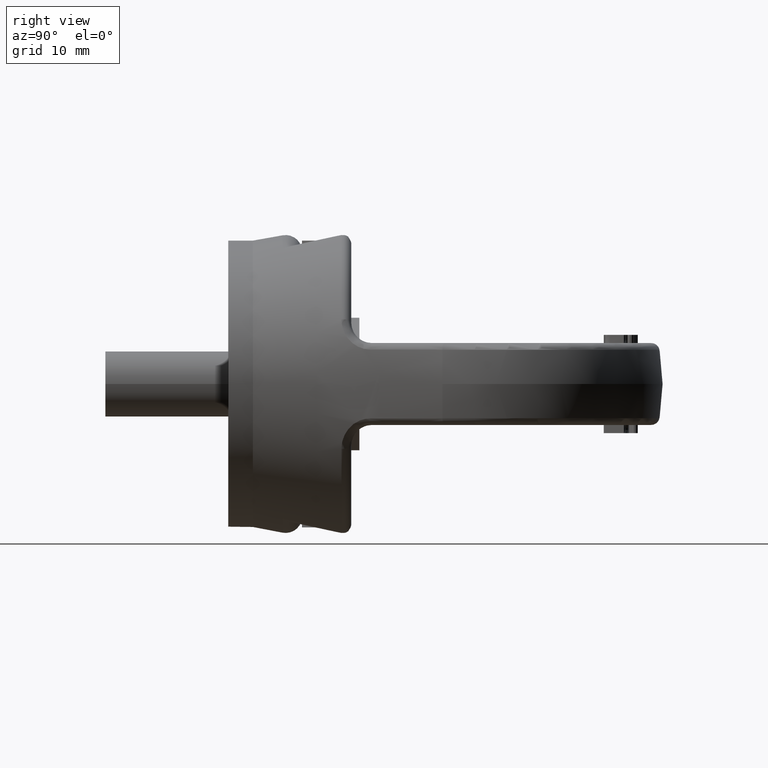
[diagram: clean part render]
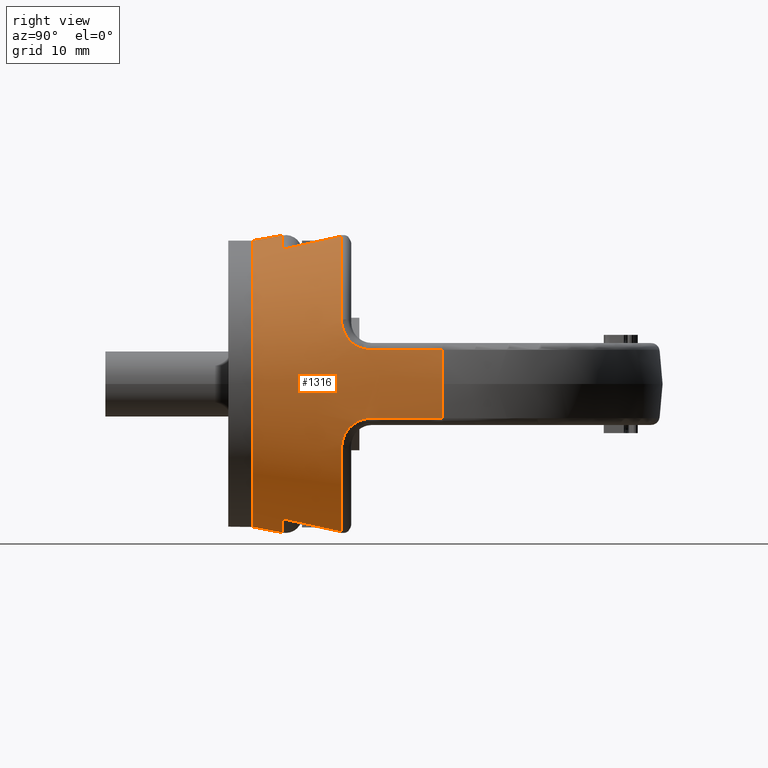
[diagram: same view with one face highlighted and labeled with its STEP entity id]
A machine part, right view. The second image highlights one B-rep face of the part: STEP entity #1316.
In plain terms, the highlighted conical surface has half-angle 11.18 deg.
Its self-contained STEP definition (entity closure, byte-faithful):
#1090=CONICAL_SURFACE('',#5143,16.9070627358619,11.180173642183);
#1316=ADVANCED_FACE('',(#1767,#1768),#1090,.T.);
#1676=CIRCLE('',#5134,22.073001942259);
#1677=CIRCLE('',#5135,19.6357807990695);
#1678=CIRCLE('',#5136,18.2139380133096);
#1679=CIRCLE('',#5137,19.6357807990695);
#1680=CIRCLE('',#5138,22.073001942259);
#1681=CIRCLE('',#5139,19.6357807990695);
#1682=CIRCLE('',#5140,18.2139380133096);
#1683=CIRCLE('',#5141,19.6357807990695);
#1684=CIRCLE('',#5142,17.5000000000001);
#1767=FACE_BOUND('',#1828,.T.);
#1768=FACE_BOUND('',#1829,.T.);
#1828=EDGE_LOOP('',(#2810,#2811,#2812,#2813,#2814,#2815,#2816,#2817,#2818,
#2819,#2820,#2821,#2822,#2823,#2824,#2825,#2826,#2827,#2828,#2829));
#1829=EDGE_LOOP('',(#2830));
#2810=ORIENTED_EDGE('',*,*,#4372,.T.);
#2811=ORIENTED_EDGE('',*,*,#4373,.T.);
#2812=ORIENTED_EDGE('',*,*,#4374,.T.);
#2813=ORIENTED_EDGE('',*,*,#4375,.T.);
#2814=ORIENTED_EDGE('',*,*,#4376,.T.);
#2815=ORIENTED_EDGE('',*,*,#4377,.T.);
#2816=ORIENTED_EDGE('',*,*,#4378,.T.);
#2817=ORIENTED_EDGE('',*,*,#4379,.T.);
#2818=ORIENTED_EDGE('',*,*,#4380,.T.);
#2819=ORIENTED_EDGE('',*,*,#4381,.T.);
#2820=ORIENTED_EDGE('',*,*,#4382,.T.);
#2821=ORIENTED_EDGE('',*,*,#4383,.T.);
#2822=ORIENTED_EDGE('',*,*,#4384,.T.);
#2823=ORIENTED_EDGE('',*,*,#4385,.T.);
#2824=ORIENTED_EDGE('',*,*,#4386,.T.);
#2825=ORIENTED_EDGE('',*,*,#4387,.T.);
#2826=ORIENTED_EDGE('',*,*,#4388,.T.);
#2827=ORIENTED_EDGE('',*,*,#4389,.T.);
#2828=ORIENTED_EDGE('',*,*,#4390,.T.);
#2829=ORIENTED_EDGE('',*,*,#4391,.T.);
#2830=ORIENTED_EDGE('',*,*,#4392,.F.);
#3982=VERTEX_POINT('',#6742);
#3983=VERTEX_POINT('',#6743);
#3984=VERTEX_POINT('',#6751);
#3985=VERTEX_POINT('',#6768);
#3986=VERTEX_POINT('',#6770);
#3987=VERTEX_POINT('',#6778);
#3988=VERTEX_POINT('',#6780);
#3989=VERTEX_POINT('',#6788);
#3990=VERTEX_POINT('',#6790);
#3991=VERTEX_POINT('',#6807);
#3992=VERTEX_POINT('',#6815);
#3993=VERTEX_POINT('',#6817);
#3994=VERTEX_POINT('',#6825);
#3995=VERTEX_POINT('',#6842);
#3996=VERTEX_POINT('',#6844);
#3997=VERTEX_POINT('',#6852);
#3998=VERTEX_POINT('',#6854);
#3999=VERTEX_POINT('',#6862);
#4000=VERTEX_POINT('',#6864);
#4001=VERTEX_POINT('',#6881);
#4002=VERTEX_POINT('',#6890);
#4372=EDGE_CURVE('',#3982,#3983,#1676,.T.);
#4373=EDGE_CURVE('',#3983,#3984,#4887,.T.);
#4374=EDGE_CURVE('',#3984,#3985,#4888,.T.);
#4375=EDGE_CURVE('',#3985,#3986,#1677,.T.);
#4376=EDGE_CURVE('',#3986,#3987,#4889,.T.);
#4377=EDGE_CURVE('',#3987,#3988,#1678,.T.);
#4378=EDGE_CURVE('',#3988,#3989,#4890,.T.);
#4379=EDGE_CURVE('',#3989,#3990,#1679,.T.);
#4380=EDGE_CURVE('',#3990,#3991,#4891,.T.);
#4381=EDGE_CURVE('',#3991,#3992,#4892,.T.);
#4382=EDGE_CURVE('',#3992,#3993,#1680,.T.);
#4383=EDGE_CURVE('',#3993,#3994,#4893,.T.);
#4384=EDGE_CURVE('',#3994,#3995,#4894,.T.);
#4385=EDGE_CURVE('',#3995,#3996,#1681,.T.);
#4386=EDGE_CURVE('',#3996,#3997,#4895,.T.);
#4387=EDGE_CURVE('',#3997,#3998,#1682,.T.);
#4388=EDGE_CURVE('',#3998,#3999,#4896,.T.);
#4389=EDGE_CURVE('',#3999,#4000,#1683,.T.);
#4390=EDGE_CURVE('',#4000,#4001,#4897,.T.);
#4391=EDGE_CURVE('',#4001,#3982,#4898,.T.);
#4392=EDGE_CURVE('',#4002,#4002,#1684,.T.);
#4887=B_SPLINE_CURVE_WITH_KNOTS('',3,(#6744,#6745,#6746,#6747,#6748,#6749,
#6750),.UNSPECIFIED.,.F.,.F.,(4,3,4),(0.,0.221983215202601,1.),
 .UNSPECIFIED.);
#4888=B_SPLINE_CURVE_WITH_KNOTS('',3,(#6752,#6753,#6754,#6755,#6756,#6757,
#6758,#6759,#6760,#6761,#6762,#6763,#6764,#6765,#6766,#6767),
 .UNSPECIFIED.,.F.,.F.,(4,3,3,3,3,4),(0.,0.0695872635101961,0.286580988228233,
0.515763328684725,0.756825802791795,1.),.UNSPECIFIED.);
#4889=B_SPLINE_CURVE_WITH_KNOTS('',3,(#6771,#6772,#6773,#6774,#6775,#6776,
#6777),.UNSPECIFIED.,.F.,.F.,(4,3,4),(0.,0.282710874215297,1.),
 .UNSPECIFIED.);
#4890=B_SPLINE_CURVE_WITH_KNOTS('',3,(#6781,#6782,#6783,#6784,#6785,#6786,
#6787),.UNSPECIFIED.,.F.,.F.,(4,3,4),(0.,0.717289125784693,1.),
 .UNSPECIFIED.);
#4891=B_SPLINE_CURVE_WITH_KNOTS('',3,(#6791,#6792,#6793,#6794,#6795,#6796,
#6797,#6798,#6799,#6800,#6801,#6802,#6803,#6804,#6805,#6806),
 .UNSPECIFIED.,.F.,.F.,(4,3,3,3,3,4),(0.,0.134114242084921,0.363639692574572,
0.582441702054787,0.792257523294552,1.),.UNSPECIFIED.);
#4892=B_SPLINE_CURVE_WITH_KNOTS('',3,(#6808,#6809,#6810,#6811,#6812,#6813,
#6814),.UNSPECIFIED.,.F.,.F.,(4,3,4),(0.,0.221983215420783,1.),
 .UNSPECIFIED.);
#4893=B_SPLINE_CURVE_WITH_KNOTS('',3,(#6818,#6819,#6820,#6821,#6822,#6823,
#6824),.UNSPECIFIED.,.F.,.F.,(4,3,4),(0.,0.221983215202601,1.),
 .UNSPECIFIED.);
#4894=B_SPLINE_CURVE_WITH_KNOTS('',3,(#6826,#6827,#6828,#6829,#6830,#6831,
#6832,#6833,#6834,#6835,#6836,#6837,#6838,#6839,#6840,#6841),
 .UNSPECIFIED.,.F.,.F.,(4,3,3,3,3,4),(0.,0.0695872635101961,0.286580988228233,
0.515763328684725,0.756825802791795,1.),.UNSPECIFIED.);
#4895=B_SPLINE_CURVE_WITH_KNOTS('',3,(#6845,#6846,#6847,#6848,#6849,#6850,
#6851),.UNSPECIFIED.,.F.,.F.,(4,3,4),(0.,0.282710874215297,1.),
 .UNSPECIFIED.);
#4896=B_SPLINE_CURVE_WITH_KNOTS('',3,(#6855,#6856,#6857,#6858,#6859,#6860,
#6861),.UNSPECIFIED.,.F.,.F.,(4,3,4),(0.,0.717289125784693,1.),
 .UNSPECIFIED.);
#4897=B_SPLINE_CURVE_WITH_KNOTS('',3,(#6865,#6866,#6867,#6868,#6869,#6870,
#6871,#6872,#6873,#6874,#6875,#6876,#6877,#6878,#6879,#6880),
 .UNSPECIFIED.,.F.,.F.,(4,3,3,3,3,4),(0.,0.134114242084921,0.363639692574572,
0.582441702054787,0.792257523294552,1.),.UNSPECIFIED.);
#4898=B_SPLINE_CURVE_WITH_KNOTS('',3,(#6882,#6883,#6884,#6885,#6886,#6887,
#6888),.UNSPECIFIED.,.F.,.F.,(4,3,4),(0.,0.221983215420783,1.),
 .UNSPECIFIED.);
#5134=AXIS2_PLACEMENT_3D('',#6741,#5481,#5482);
#5135=AXIS2_PLACEMENT_3D('',#6769,#5483,#5484);
#5136=AXIS2_PLACEMENT_3D('',#6779,#5485,#5486);
#5137=AXIS2_PLACEMENT_3D('',#6789,#5487,#5488);
#5138=AXIS2_PLACEMENT_3D('',#6816,#5489,#5490);
#5139=AXIS2_PLACEMENT_3D('',#6843,#5491,#5492);
#5140=AXIS2_PLACEMENT_3D('',#6853,#5493,#5494);
#5141=AXIS2_PLACEMENT_3D('',#6863,#5495,#5496);
#5142=AXIS2_PLACEMENT_3D('',#6889,#5497,#5498);
#5143=AXIS2_PLACEMENT_3D('',#6891,#5499,#5500);
#5481=DIRECTION('',(-2.40383963873025E-15,-1.,0.));
#5482=DIRECTION('',(1.,-2.35770849907234E-15,0.));
#5483=DIRECTION('',(0.,-1.,0.));
#5484=DIRECTION('',(-2.34291072916505E-15,0.,1.));
#5485=DIRECTION('',(-1.73472347597681E-16,-1.,-4.06430224400055E-31));
#5486=DIRECTION('',(-1.,1.90483076719508E-16,-2.34291072916505E-15));
#5487=DIRECTION('',(0.,-1.,0.));
#5488=DIRECTION('',(-2.34291072916505E-15,0.,1.));
#5489=DIRECTION('',(-2.40383963873025E-15,-1.,0.));
#5490=DIRECTION('',(1.,-2.35770849907234E-15,0.));
#5491=DIRECTION('',(0.,-1.,0.));
#5492=DIRECTION('',(0.,0.,-1.));
#5493=DIRECTION('',(1.73472347597681E-16,-1.,0.));
#5494=DIRECTION('',(1.,1.90483076719508E-16,0.));
#5495=DIRECTION('',(0.,-1.,0.));
#5496=DIRECTION('',(0.,0.,-1.));
#5497=DIRECTION('',(0.,-1.,0.));
#5498=DIRECTION('',(0.,0.,1.));
#5499=DIRECTION('',(2.40383963873025E-15,1.,0.));
#5500=DIRECTION('',(-1.,1.87578914699195E-15,0.));
#6741=CARTESIAN_POINT('',(-6.45734671206007E-14,26.1373648723466,0.));
#6742=CARTESIAN_POINT('',(-21.6724347812021,26.1373648723467,4.18604651162793));
#6743=CARTESIAN_POINT('',(-21.672434781202,26.1373648723466,-4.18604651162796));
#6744=CARTESIAN_POINT('',(-21.672434781202,26.1373648723466,-4.18604651162796));
#6745=CARTESIAN_POINT('',(-21.5406633086432,25.4838517290281,-4.18718583237248));
#6746=CARTESIAN_POINT('',(-21.4088426420602,24.8303485388779,-4.18834605955066));
#6747=CARTESIAN_POINT('',(-21.2769697532117,24.1768559292715,-4.18952838715658));
#6748=CARTESIAN_POINT('',(-20.814775727404,21.8864656700838,-4.19367226207111));
#6749=CARTESIAN_POINT('',(-20.3519436377216,19.5962044936565,-4.19808637764071));
#6750=CARTESIAN_POINT('',(-19.888316307205,17.3061051054376,-4.20283180187705));
#6751=CARTESIAN_POINT('',(-19.888316307205,17.3061051054376,-4.20283180187705));
#6752=CARTESIAN_POINT('',(-19.888316307205,17.3061051054376,-4.20283180187705));
#6753=CARTESIAN_POINT('',(-19.8605739823805,17.1690711625992,-4.20311575644989));
#6754=CARTESIAN_POINT('',(-19.8310627417486,17.0321501769281,-4.21189103656202));
#6755=CARTESIAN_POINT('',(-19.8000881721824,16.8968768261502,-4.22891206227255));
#6756=CARTESIAN_POINT('',(-19.7049509818359,16.4813899702548,-4.28119148328135));
#6757=CARTESIAN_POINT('',(-19.5938692177752,16.0732011099137,-4.41470251746434));
#6758=CARTESIAN_POINT('',(-19.4737664815476,15.7105607273751,-4.61086784562616));
#6759=CARTESIAN_POINT('',(-19.3469209800925,15.3275611170766,-4.81804621807913));
#6760=CARTESIAN_POINT('',(-19.205640901566,14.983045492287,-5.10117875078318));
#6761=CARTESIAN_POINT('',(-19.0558053892072,14.7050919990034,-5.42674369906242));
#6762=CARTESIAN_POINT('',(-18.89815125407,14.412634510774,-5.7692970733858));
#6763=CARTESIAN_POINT('',(-18.7259182486898,14.184564166561,-6.16857682720619));
#6764=CARTESIAN_POINT('',(-18.5467321961083,14.0344878820943,-6.58462789427439));
#6765=CARTESIAN_POINT('',(-18.3657833210159,13.8829351554113,-7.00477204881302));
#6766=CARTESIAN_POINT('',(-18.1726819336164,13.8061051054376,-7.45317051754948));
#6767=CARTESIAN_POINT('',(-17.9789360387548,13.8061051054376,-7.89441235960382));
#6768=CARTESIAN_POINT('',(-17.9789360387548,13.8061051054376,-7.89441235960382));
#6769=CARTESIAN_POINT('',(9.42158381437761E-14,13.8061051054376,2.20739298044331E-28));
#6770=CARTESIAN_POINT('',(-7.7771029384059,13.8061051054376,-18.0299905012327));
#6771=CARTESIAN_POINT('',(-7.7771029384059,13.8061051054376,-18.0299905012327));
#6772=CARTESIAN_POINT('',(-7.7829973229986,13.1278379372851,-17.8814520000531));
#6773=CARTESIAN_POINT('',(-7.78902502892581,12.4496555064203,-17.7325311762808));
#6774=CARTESIAN_POINT('',(-7.79519545648807,11.7715661821499,-17.5831940555431));
#6775=CARTESIAN_POINT('',(-7.81085094026896,10.051131688593,-17.2042989387942));
#6776=CARTESIAN_POINT('',(-7.8274221933806,8.3312888668456,-16.8227381291895));
#6777=CARTESIAN_POINT('',(-7.84508998335061,6.61221021087525,-16.4378253155889));
#6778=CARTESIAN_POINT('',(-7.84508998335061,6.61221021087525,-16.4378253155889));
#6779=CARTESIAN_POINT('',(1.11508807848184E-13,6.61221021087526,2.61255182303915E-28));
#6780=CARTESIAN_POINT('',(7.84508998335066,6.61221021087526,-16.437825315589));
#6781=CARTESIAN_POINT('',(7.84508998335066,6.61221021087526,-16.437825315589));
#6782=CARTESIAN_POINT('',(7.82742219338065,8.33128886684559,-16.8227381291896));
#6783=CARTESIAN_POINT('',(7.81085094026902,10.0511316885929,-17.2042989387942));
#6784=CARTESIAN_POINT('',(7.79519545648813,11.7715661821499,-17.5831940555432));
#6785=CARTESIAN_POINT('',(7.78902502892587,12.4496555064203,-17.7325311762809));
#6786=CARTESIAN_POINT('',(7.78299732299867,13.1278379372851,-17.8814520000531));
#6787=CARTESIAN_POINT('',(7.77710293840597,13.8061051054377,-18.0299905012328));
#6788=CARTESIAN_POINT('',(7.77710293840597,13.8061051054377,-18.0299905012328));
#6789=CARTESIAN_POINT('',(9.42158381437761E-14,13.8061051054376,2.20739298044331E-28));
#6790=CARTESIAN_POINT('',(17.978936038755,13.8061051054376,-7.89441235960374));
#6791=CARTESIAN_POINT('',(17.978936038755,13.8061051054376,-7.89441235960374));
#6792=CARTESIAN_POINT('',(18.0866533164108,13.8061051054376,-7.64909428435962));
#6793=CARTESIAN_POINT('',(18.1939264048667,13.8295156780585,-7.40244386189451));
#6794=CARTESIAN_POINT('',(18.2986036982959,13.8762492274523,-7.16028149993779));
#6795=CARTESIAN_POINT('',(18.4763139535499,13.955588602016,-6.74916335056198));
#6796=CARTESIAN_POINT('',(18.6496299376606,14.1047710392686,-6.34323665967899));
#6797=CARTESIAN_POINT('',(18.8107516901883,14.3177234066486,-5.97501814573044));
#6798=CARTESIAN_POINT('',(18.964320525103,14.5206931884304,-5.62406064127219));
#6799=CARTESIAN_POINT('',(19.1107021877604,14.7868725807546,-5.29916881997143));
#6800=CARTESIAN_POINT('',(19.244782222766,15.0999764263563,-5.03095283351376));
#6801=CARTESIAN_POINT('',(19.3733066606427,15.4001068354161,-4.77385035820815));
#6802=CARTESIAN_POINT('',(19.4940814950248,15.7513257155585,-4.56260575074639));
#6803=CARTESIAN_POINT('',(19.6021537838534,16.1266094707047,-4.42054604536554));
#6804=CARTESIAN_POINT('',(19.7090449537129,16.4977917603702,-4.28003890646222));
#6805=CARTESIAN_POINT('',(19.8067589370606,16.9032503314004,-4.20366657648031));
#6806=CARTESIAN_POINT('',(19.8883163072051,17.3061051054376,-4.20283180187696));
#6807=CARTESIAN_POINT('',(19.8883163072051,17.3061051054376,-4.20283180187696));
#6808=CARTESIAN_POINT('',(19.8883163072051,17.3061051054376,-4.20283180187696));
#6809=CARTESIAN_POINT('',(20.0205981458655,17.9595147252954,-4.20147784061995));
#6810=CARTESIAN_POINT('',(20.152814948728,18.6129375711198,-4.20015095581437));
#6811=CARTESIAN_POINT('',(20.2849707665183,19.2663727979291,-4.19884958655393));
#6812=CARTESIAN_POINT('',(20.7481564140898,21.5565619378121,-4.19428848910316));
#6813=CARTESIAN_POINT('',(21.2105962031039,23.846902642412,-4.19003965416799));
#6814=CARTESIAN_POINT('',(21.6724347812021,26.1373648723467,-4.18604651162788));
#6815=CARTESIAN_POINT('',(21.6724347812021,26.1373648723467,-4.18604651162788));
#6816=CARTESIAN_POINT('',(-6.45734671206007E-14,26.1373648723466,0.));
#6817=CARTESIAN_POINT('',(21.672434781202,26.1373648723466,4.18604651162791));
#6818=CARTESIAN_POINT('',(21.672434781202,26.1373648723466,4.18604651162791));
#6819=CARTESIAN_POINT('',(21.5406633086432,25.4838517290281,4.18718583237243));
#6820=CARTESIAN_POINT('',(21.4088426420602,24.8303485388779,4.18834605955061));
#6821=CARTESIAN_POINT('',(21.2769697532117,24.1768559292715,4.18952838715653));
#6822=CARTESIAN_POINT('',(20.814775727404,21.8864656700838,4.19367226207106));
#6823=CARTESIAN_POINT('',(20.3519436377216,19.5962044936565,4.19808637764066));
#6824=CARTESIAN_POINT('',(19.888316307205,17.3061051054376,4.202831801877));
#6825=CARTESIAN_POINT('',(19.888316307205,17.3061051054376,4.202831801877));
#6826=CARTESIAN_POINT('',(19.888316307205,17.3061051054376,4.202831801877));
#6827=CARTESIAN_POINT('',(19.8605739823805,17.1690711625992,4.20311575644985));
#6828=CARTESIAN_POINT('',(19.8310627417486,17.0321501769281,4.21189103656197));
#6829=CARTESIAN_POINT('',(19.8000881721824,16.8968768261502,4.2289120622725));
#6830=CARTESIAN_POINT('',(19.7049509818359,16.4813899702548,4.2811914832813));
#6831=CARTESIAN_POINT('',(19.5938692177752,16.0732011099137,4.41470251746429));
#6832=CARTESIAN_POINT('',(19.4737664815476,15.7105607273751,4.61086784562611));
#6833=CARTESIAN_POINT('',(19.3469209800925,15.3275611170766,4.81804621807908));
#6834=CARTESIAN_POINT('',(19.205640901566,14.983045492287,5.10117875078313));
#6835=CARTESIAN_POINT('',(19.0558053892072,14.7050919990034,5.42674369906237));
#6836=CARTESIAN_POINT('',(18.89815125407,14.412634510774,5.76929707338575));
#6837=CARTESIAN_POINT('',(18.7259182486898,14.184564166561,6.16857682720614));
#6838=CARTESIAN_POINT('',(18.5467321961083,14.0344878820943,6.58462789427434));
#6839=CARTESIAN_POINT('',(18.365783321016,13.8829351554113,7.00477204881298));
#6840=CARTESIAN_POINT('',(18.1726819336164,13.8061051054376,7.45317051754944));
#6841=CARTESIAN_POINT('',(17.9789360387548,13.8061051054376,7.89441235960378));
#6842=CARTESIAN_POINT('',(17.9789360387548,13.8061051054376,7.89441235960378));
#6843=CARTESIAN_POINT('',(-9.42158381437761E-14,13.8061051054376,0.));
#6844=CARTESIAN_POINT('',(7.77710293840594,13.8061051054376,18.0299905012327));
#6845=CARTESIAN_POINT('',(7.77710293840594,13.8061051054376,18.0299905012327));
#6846=CARTESIAN_POINT('',(7.78299732299864,13.1278379372851,17.8814520000531));
#6847=CARTESIAN_POINT('',(7.78902502892585,12.4496555064203,17.7325311762808));
#6848=CARTESIAN_POINT('',(7.79519545648811,11.7715661821499,17.5831940555431));
#6849=CARTESIAN_POINT('',(7.810850940269,10.051131688593,17.2042989387941));
#6850=CARTESIAN_POINT('',(7.82742219338064,8.3312888668456,16.8227381291895));
#6851=CARTESIAN_POINT('',(7.84508998335065,6.61221021087525,16.4378253155889));
#6852=CARTESIAN_POINT('',(7.84508998335065,6.61221021087525,16.4378253155889));
#6853=CARTESIAN_POINT('',(-1.11508807848184E-13,6.61221021087526,0.));
#6854=CARTESIAN_POINT('',(-7.84508998335062,6.61221021087526,16.437825315589));
#6855=CARTESIAN_POINT('',(-7.84508998335062,6.61221021087526,16.437825315589));
#6856=CARTESIAN_POINT('',(-7.82742219338061,8.33128886684559,16.8227381291896));
#6857=CARTESIAN_POINT('',(-7.81085094026898,10.0511316885929,17.2042989387942));
#6858=CARTESIAN_POINT('',(-7.79519545648809,11.7715661821499,17.5831940555432));
#6859=CARTESIAN_POINT('',(-7.78902502892583,12.4496555064203,17.7325311762809));
#6860=CARTESIAN_POINT('',(-7.78299732299863,13.1278379372851,17.8814520000532));
#6861=CARTESIAN_POINT('',(-7.77710293840592,13.8061051054377,18.0299905012328));
#6862=CARTESIAN_POINT('',(-7.77710293840592,13.8061051054377,18.0299905012328));
#6863=CARTESIAN_POINT('',(-9.42158381437761E-14,13.8061051054376,0.));
#6864=CARTESIAN_POINT('',(-17.978936038755,13.8061051054376,7.89441235960378));
#6865=CARTESIAN_POINT('',(-17.978936038755,13.8061051054376,7.89441235960378));
#6866=CARTESIAN_POINT('',(-18.0866533164107,13.8061051054376,7.64909428435966));
#6867=CARTESIAN_POINT('',(-18.1939264048667,13.8295156780585,7.40244386189455));
#6868=CARTESIAN_POINT('',(-18.2986036982959,13.8762492274523,7.16028149993783));
#6869=CARTESIAN_POINT('',(-18.4763139535499,13.955588602016,6.74916335056203));
#6870=CARTESIAN_POINT('',(-18.6496299376606,14.1047710392686,6.34323665967903));
#6871=CARTESIAN_POINT('',(-18.8107516901883,14.3177234066486,5.97501814573048));
#6872=CARTESIAN_POINT('',(-18.964320525103,14.5206931884304,5.62406064127223));
#6873=CARTESIAN_POINT('',(-19.1107021877604,14.7868725807546,5.29916881997148));
#6874=CARTESIAN_POINT('',(-19.244782222766,15.0999764263563,5.03095283351381));
#6875=CARTESIAN_POINT('',(-19.3733066606427,15.4001068354161,4.7738503582082));
#6876=CARTESIAN_POINT('',(-19.4940814950248,15.7513257155585,4.56260575074644));
#6877=CARTESIAN_POINT('',(-19.6021537838534,16.1266094707047,4.42054604536559));
#6878=CARTESIAN_POINT('',(-19.7090449537129,16.4977917603702,4.28003890646226));
#6879=CARTESIAN_POINT('',(-19.8067589370606,16.9032503314004,4.20366657648036));
#6880=CARTESIAN_POINT('',(-19.8883163072051,17.3061051054376,4.202831801877));
#6881=CARTESIAN_POINT('',(-19.8883163072051,17.3061051054376,4.202831801877));
#6882=CARTESIAN_POINT('',(-19.8883163072051,17.3061051054376,4.202831801877));
#6883=CARTESIAN_POINT('',(-20.0205981458655,17.9595147252954,4.20147784062));
#6884=CARTESIAN_POINT('',(-20.1528149487279,18.6129375711198,4.20015095581442));
#6885=CARTESIAN_POINT('',(-20.2849707665182,19.2663727979291,4.19884958655397));
#6886=CARTESIAN_POINT('',(-20.7481564140898,21.5565619378121,4.19428848910321));
#6887=CARTESIAN_POINT('',(-21.2105962031039,23.846902642412,4.19003965416804));
#6888=CARTESIAN_POINT('',(-21.6724347812021,26.1373648723467,4.18604651162793));
#6889=CARTESIAN_POINT('',(-1.27403500852703E-13,3.,1.55259211592821E-14));
#6890=CARTESIAN_POINT('',(-1.27403500852703E-13,3.,17.5000000000001));
#6891=CARTESIAN_POINT('',(-1.27403500852703E-13,4.16333634234434E-14,0.));